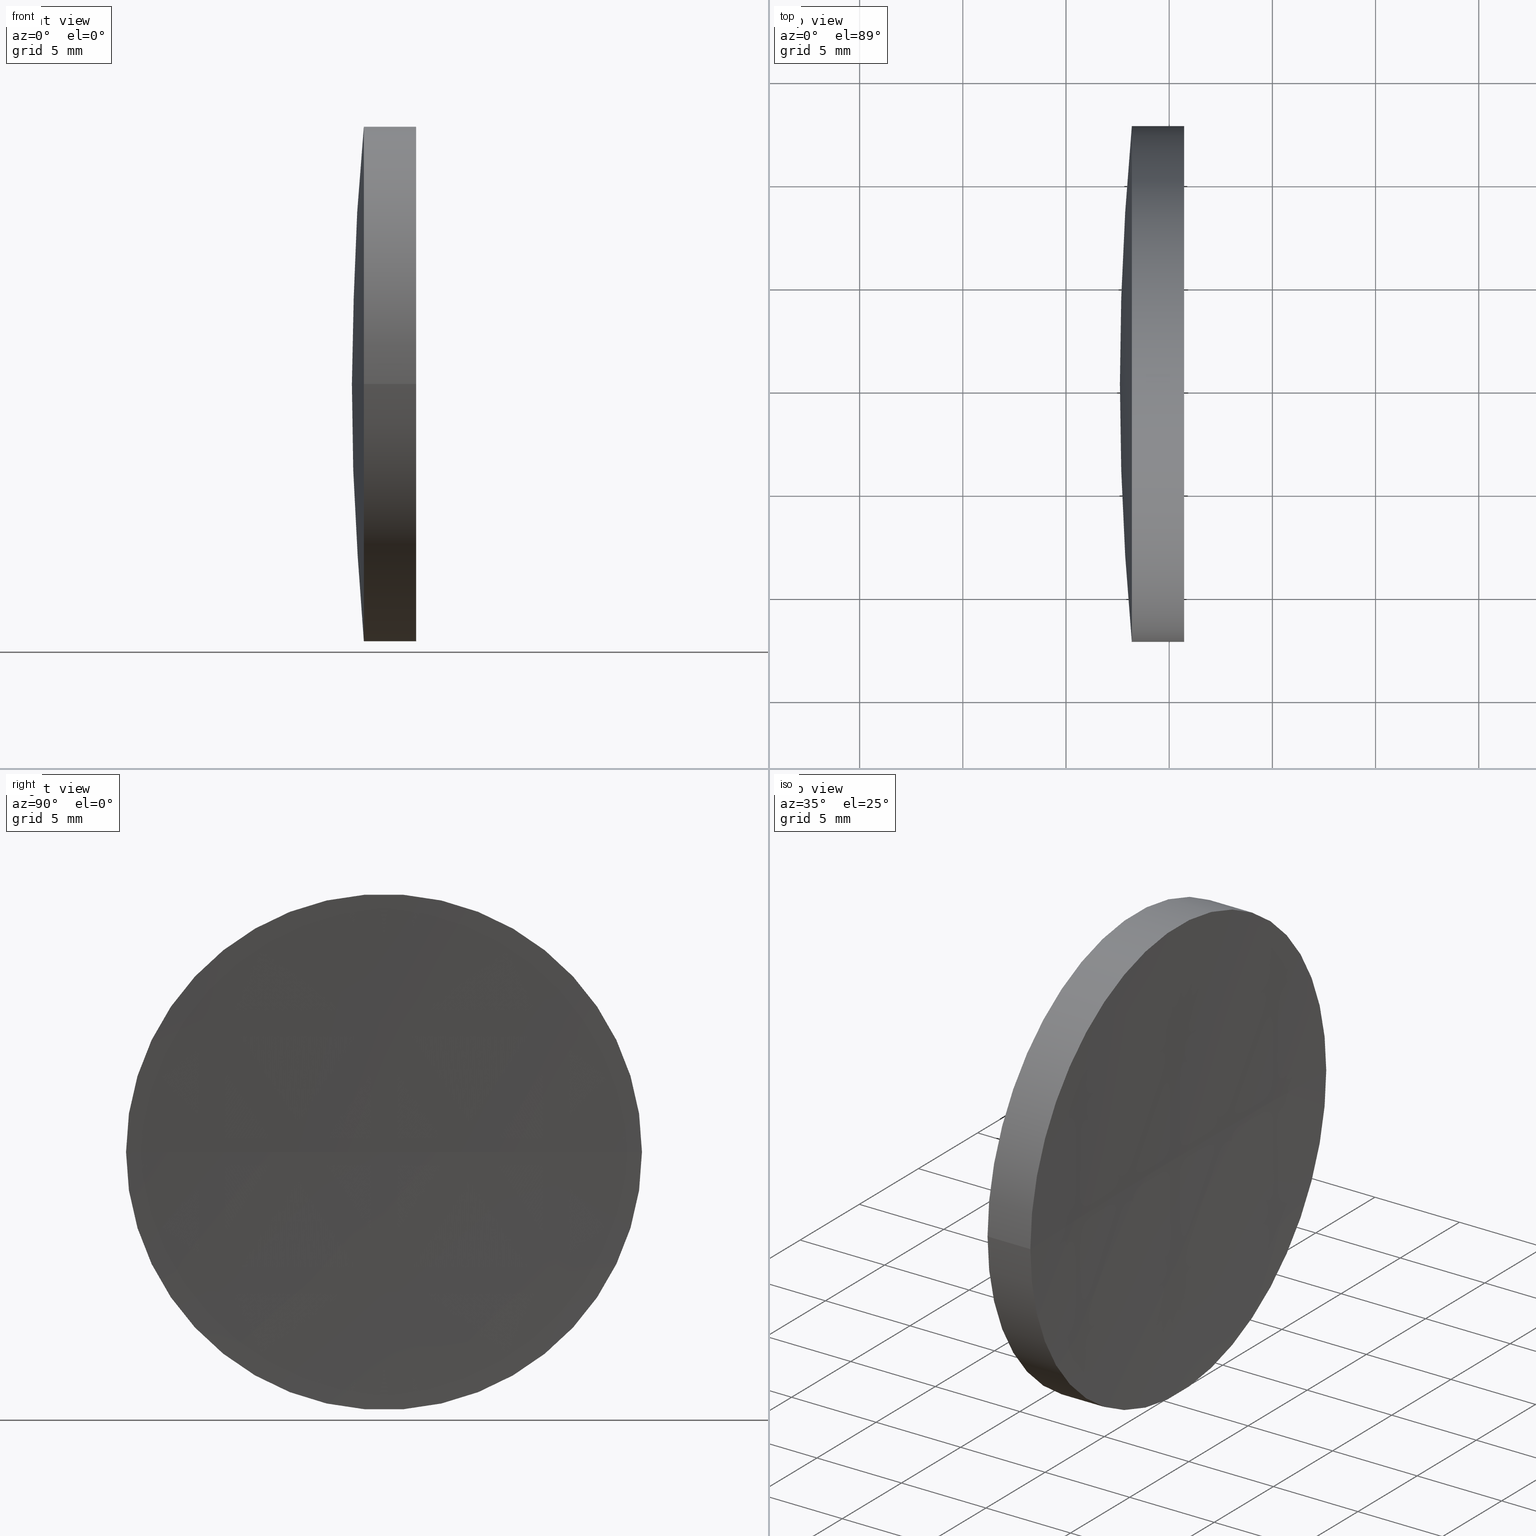
[diagram: canonical four-view strip — front | top / right | iso, engineering-drawing reading convention]
A machine part, canonical four-view strip (front | top / right | iso — engineering-drawing reading convention). The complete STEP part file that produces these views, byte-faithful:
ISO-10303-21;
HEADER;
FILE_DESCRIPTION (( 'STEP AP214' ),
    '1' );
FILE_NAME ('150010.STEP',
    '2019-07-04T06:19:51',
    ( '' ),
    ( '' ),
    'SwSTEP 2.0',
    'SolidWorks 2016',
    '' );
FILE_SCHEMA (( 'AUTOMOTIVE_DESIGN' ));
ENDSEC;

DATA;
#1 = SPHERICAL_SURFACE ( 'NONE', #110, 371.3000000000000700 ) ;
#2 = FACE_OUTER_BOUND ( 'NONE', #70, .T. ) ;
#3 = SURFACE_STYLE_FILL_AREA ( #169 ) ;
#4 = DIRECTION ( 'NONE',  ( -1.000000000000000000, -6.937607244762875000E-016, -0.0000000000000000000 ) ) ;
#5 = CARTESIAN_POINT ( 'NONE',  ( 258.0121936984948000, 65.21684047094031200, 0.0000000000000000000 ) ) ;
#6 = DIRECTION ( 'NONE',  ( 0.0000000000000000000, -1.000000000000000000, 0.0000000000000000000 ) ) ;
#7 =( NAMED_UNIT ( * ) PLANE_ANGLE_UNIT ( ) SI_UNIT ( $, .RADIAN. ) );
#8 = ADVANCED_BREP_SHAPE_REPRESENTATION ( '150010', ( #111, #23 ), #48 ) ;
#9 = ADVANCED_FACE ( 'NONE', ( #72 ), #154, .T. ) ;
#10 = SURFACE_STYLE_USAGE ( .BOTH. , #64 ) ;
#11 = FACE_OUTER_BOUND ( 'NONE', #192, .T. ) ;
#12 = VERTEX_POINT ( 'NONE', #79 ) ;
#13 = EDGE_CURVE ( 'NONE', #49, #176, #78, .T. ) ;
#14 = VECTOR ( 'NONE', #40, 1000.000000000000000 ) ;
#15 = EDGE_LOOP ( 'NONE', ( #187, #84, #112 ) ) ;
#16 = CARTESIAN_POINT ( 'NONE',  ( 115.9444912979631800, 52.71684047094035500, 0.0000000000000000000 ) ) ;
#17 = SPHERICAL_SURFACE ( 'NONE', #156, 371.3000000000000700 ) ;
#18 = CARTESIAN_POINT ( 'NONE',  ( 123.1904224595736100, 65.21684047094032600, 0.0000000000000000000 ) ) ;
#19 = CYLINDRICAL_SURFACE ( 'NONE', #132, 12.49999999999997000 ) ;
#20 = EDGE_CURVE ( 'NONE', #12, #52, #28, .T. ) ;
#21 = FILL_AREA_STYLE ('',( #122 ) ) ;
#22 = VERTEX_POINT ( 'NONE', #75 ) ;
#23 = AXIS2_PLACEMENT_3D ( 'NONE', #39, #71, #159 ) ;
#24 = EDGE_CURVE ( 'NONE', #22, #49, #145, .T. ) ;
#25 = PRESENTATION_STYLE_ASSIGNMENT (( #141 ) ) ;
#26 = ORIENTED_EDGE ( 'NONE', *, *, #113, .F. ) ;
#27 = UNCERTAINTY_MEASURE_WITH_UNIT (LENGTH_MEASURE( 1.000000000000000100E-005 ), #56, 'distance_accuracy_value', 'NONE');
#28 = CIRCLE ( 'NONE', #88, 12.49999999999990800 ) ;
#29 = AXIS2_PLACEMENT_3D ( 'NONE', #117, #34, #33 ) ;
#30 = PRODUCT_DEFINITION_SHAPE ( 'NONE', 'NONE',  #32 ) ;
#31 = FACE_OUTER_BOUND ( 'NONE', #146, .T. ) ;
#32 = PRODUCT_DEFINITION ( 'δ֪', '', #46, #191 ) ;
#33 = DIRECTION ( 'NONE',  ( 0.0000000000000000000, 1.000000000000000000, 1.224646799147353200E-016 ) ) ;
#34 = DIRECTION ( 'NONE',  ( -8.496118506040342700E-032, 1.224646799147353200E-016, -1.000000000000000000 ) ) ;
#35 = AXIS2_PLACEMENT_3D ( 'NONE', #105, #172, #82 ) ;
#36 = COLOUR_RGB ( '',1.000000000000000000, 1.000000000000000000, 1.000000000000000000 ) ;
#37 = COLOUR_RGB ( '',1.000000000000000000, 1.000000000000000000, 1.000000000000000000 ) ;
#38 = CARTESIAN_POINT ( 'NONE',  ( 115.9444912979631700, 65.21684047094032600, 0.0000000000000000000 ) ) ;
#39 = CARTESIAN_POINT ( 'NONE',  ( 0.0000000000000000000, 0.0000000000000000000, 0.0000000000000000000 ) ) ;
#40 = DIRECTION ( 'NONE',  ( -1.000000000000000000, -6.937607244762875000E-016, -0.0000000000000000000 ) ) ;
#41 = EDGE_LOOP ( 'NONE', ( #74, #59, #44 ) ) ;
#42 = CARTESIAN_POINT ( 'NONE',  ( 125.5121936984948100, 65.21684047094019800, 0.0000000000000000000 ) ) ;
#43 = DIRECTION ( 'NONE',  ( 1.000000000000000000, 0.0000000000000000000, 0.0000000000000000000 ) ) ;
#44 = ORIENTED_EDGE ( 'NONE', *, *, #114, .T. ) ;
#45 = ORIENTED_EDGE ( 'NONE', *, *, #167, .T. ) ;
#46 = PRODUCT_DEFINITION_FORMATION_WITH_SPECIFIED_SOURCE ( '�κ�', '', #164, .NOT_KNOWN. ) ;
#47 = CIRCLE ( 'NONE', #143, 135.4000000000000300 ) ;
#48 =( GEOMETRIC_REPRESENTATION_CONTEXT ( 3 ) GLOBAL_UNCERTAINTY_ASSIGNED_CONTEXT ( ( #128 ) ) GLOBAL_UNIT_ASSIGNED_CONTEXT ( ( #95, #66, #80 ) ) REPRESENTATION_CONTEXT ( 'NONE', 'WORKASPACE' ) );
#49 = VERTEX_POINT ( 'NONE', #61 ) ;
#50 = EDGE_CURVE ( 'NONE', #12, #49, #183, .T. ) ;
#51 = CARTESIAN_POINT ( 'NONE',  ( 115.9444912979631500, 77.71684047094029800, 1.530808498934187800E-015 ) ) ;
#52 = VERTEX_POINT ( 'NONE', #76 ) ;
#53 =( LENGTH_UNIT ( ) NAMED_UNIT ( * ) SI_UNIT ( .MILLI., .METRE. ) );
#54 = DIRECTION ( 'NONE',  ( 0.0000000000000000000, -0.0000000000000000000, 1.000000000000000000 ) ) ;
#55 = CARTESIAN_POINT ( 'NONE',  ( 123.1904224595736100, 65.21684047094032600, 0.0000000000000000000 ) ) ;
#56 =( LENGTH_UNIT ( ) NAMED_UNIT ( * ) SI_UNIT ( .MILLI., .METRE. ) );
#57 = ORIENTED_EDGE ( 'NONE', *, *, #50, .F. ) ;
#58 = AXIS2_PLACEMENT_3D ( 'NONE', #18, #101, #148 ) ;
#59 = ORIENTED_EDGE ( 'NONE', *, *, #131, .T. ) ;
#60 = PRESENTATION_STYLE_ASSIGNMENT (( #10 ) ) ;
#61 = CARTESIAN_POINT ( 'NONE',  ( 123.1904224595736300, 52.71684047094031200, 0.0000000000000000000 ) ) ;
#62 = UNCERTAINTY_MEASURE_WITH_UNIT (LENGTH_MEASURE( 1.000000000000000100E-005 ), #53, 'distance_accuracy_value', 'NONE');
#63 = LINE ( 'NONE', #51, #14 ) ;
#64 = SURFACE_SIDE_STYLE ('',( #3 ) ) ;
#65 = ADVANCED_FACE ( 'NONE', ( #31 ), #1, .F. ) ;
#66 =( NAMED_UNIT ( * ) PLANE_ANGLE_UNIT ( ) SI_UNIT ( $, .RADIAN. ) );
#67 =( GEOMETRIC_REPRESENTATION_CONTEXT ( 3 ) GLOBAL_UNCERTAINTY_ASSIGNED_CONTEXT ( ( #62 ) ) GLOBAL_UNIT_ASSIGNED_CONTEXT ( ( #53, #7, #104 ) ) REPRESENTATION_CONTEXT ( 'NONE', 'WORKASPACE' ) );
#68 = DIRECTION ( 'NONE',  ( 0.0000000000000000000, 0.0000000000000000000, -1.000000000000000000 ) ) ;
#69 =( NAMED_UNIT ( * ) PLANE_ANGLE_UNIT ( ) SI_UNIT ( $, .RADIAN. ) );
#70 = EDGE_LOOP ( 'NONE', ( #109, #73, #171, #57 ) ) ;
#71 = DIRECTION ( 'NONE',  ( 0.0000000000000000000, 0.0000000000000000000, 1.000000000000000000 ) ) ;
#72 = FACE_OUTER_BOUND ( 'NONE', #15, .T. ) ;
#73 = ORIENTED_EDGE ( 'NONE', *, *, #113, .T. ) ;
#74 = ORIENTED_EDGE ( 'NONE', *, *, #13, .F. ) ;
#75 = CARTESIAN_POINT ( 'NONE',  ( 123.1904224595736000, 77.71684047094035500, 1.530808498934193900E-015 ) ) ;
#76 = CARTESIAN_POINT ( 'NONE',  ( 125.7226627224782000, 77.71684047094014100, 0.0000000000000000000 ) ) ;
#77 = CYLINDRICAL_SURFACE ( 'NONE', #165, 12.49999999999997000 ) ;
#78 = CIRCLE ( 'NONE', #29, 135.4000000000000300 ) ;
#79 = CARTESIAN_POINT ( 'NONE',  ( 125.7226627224782000, 52.71684047094036900, -1.530808498934169000E-015 ) ) ;
#80 =( NAMED_UNIT ( * ) SI_UNIT ( $, .STERADIAN. ) SOLID_ANGLE_UNIT ( ) );
#81 = EDGE_LOOP ( 'NONE', ( #26, #181, #99, #116 ) ) ;
#82 = DIRECTION ( 'NONE',  ( -8.199579206980475300E-016, 1.000000000000000000, 0.0000000000000000000 ) ) ;
#83 = DIRECTION ( 'NONE',  ( 1.000000000000000000, 0.0000000000000000000, 0.0000000000000000000 ) ) ;
#84 = ORIENTED_EDGE ( 'NONE', *, *, #13, .T. ) ;
#85 = PRESENTATION_LAYER_ASSIGNMENT (  '', '', ( #97 ) ) ;
#86 = SHAPE_DEFINITION_REPRESENTATION ( #30, #8 ) ;
#87 = DIRECTION ( 'NONE',  ( -0.0000000000000000000, 0.0000000000000000000, -1.000000000000000000 ) ) ;
#88 = AXIS2_PLACEMENT_3D ( 'NONE', #147, #4, #6 ) ;
#89 = DIRECTION ( 'NONE',  ( -1.000000000000000000, -6.937607244762875000E-016, -0.0000000000000000000 ) ) ;
#90 = CARTESIAN_POINT ( 'NONE',  ( 115.9444912979631700, 65.21684047094032600, 0.0000000000000000000 ) ) ;
#91 = CIRCLE ( 'NONE', #162, 12.49999999999990800 ) ;
#92 = ORIENTED_EDGE ( 'NONE', *, *, #167, .F. ) ;
#93 = MECHANICAL_DESIGN_GEOMETRIC_PRESENTATION_REPRESENTATION (  '', ( #97 ), #152 ) ;
#94 = DIRECTION ( 'NONE',  ( -8.496118506040342700E-032, 1.224646799147353200E-016, -1.000000000000000000 ) ) ;
#95 =( LENGTH_UNIT ( ) NAMED_UNIT ( * ) SI_UNIT ( .MILLI., .METRE. ) );
#96 = CLOSED_SHELL ( 'NONE', ( #9, #133, #65, #121, #125, #139 ) ) ;
#97 = STYLED_ITEM ( 'NONE', ( #25 ), #8 ) ;
#98 = DIRECTION ( 'NONE',  ( -8.199579206980475300E-016, 1.000000000000000000, 0.0000000000000000000 ) ) ;
#99 = ORIENTED_EDGE ( 'NONE', *, *, #50, .T. ) ;
#100 = CARTESIAN_POINT ( 'NONE',  ( 496.8121936984948700, 65.21684047094044000, 0.0000000000000000000 ) ) ;
#101 = DIRECTION ( 'NONE',  ( -1.000000000000000000, -6.937607244762875000E-016, -0.0000000000000000000 ) ) ;
#102 = DIRECTION ( 'NONE',  ( -7.475242557400729000E-016, 1.000000000000000000, 0.0000000000000000000 ) ) ;
#103 = DIRECTION ( 'NONE',  ( 1.110223024625155000E-015, -1.000000000000000000, 0.0000000000000000000 ) ) ;
#104 =( NAMED_UNIT ( * ) SI_UNIT ( $, .STERADIAN. ) SOLID_ANGLE_UNIT ( ) );
#105 = CARTESIAN_POINT ( 'NONE',  ( 258.0121936984948000, 65.21684047094031200, 0.0000000000000000000 ) ) ;
#106 = ORIENTED_EDGE ( 'NONE', *, *, #188, .T. ) ;
#107 = APPLICATION_PROTOCOL_DEFINITION ( 'draft international standard', 'automotive_design', 1998, #142 ) ;
#108 = PRODUCT_CONTEXT ( 'NONE', #127, 'mechanical' ) ;
#109 = ORIENTED_EDGE ( 'NONE', *, *, #20, .T. ) ;
#110 = AXIS2_PLACEMENT_3D ( 'NONE', #100, #168, #102 ) ;
#111 = MANIFOLD_SOLID_BREP ( '��ת1', #96 ) ;
#112 = ORIENTED_EDGE ( 'NONE', *, *, #114, .F. ) ;
#113 = EDGE_CURVE ( 'NONE', #52, #22, #63, .T. ) ;
#114 = EDGE_CURVE ( 'NONE', #22, #176, #47, .T. ) ;
#115 = FACE_OUTER_BOUND ( 'NONE', #81, .T. ) ;
#116 = ORIENTED_EDGE ( 'NONE', *, *, #24, .F. ) ;
#117 = CARTESIAN_POINT ( 'NONE',  ( 258.0121936984948000, 65.21684047094031200, 0.0000000000000000000 ) ) ;
#118 = PRODUCT_RELATED_PRODUCT_CATEGORY ( 'part', '', ( #164 ) ) ;
#119 = AXIS2_PLACEMENT_3D ( 'NONE', #155, #94, #124 ) ;
#120 = DIRECTION ( 'NONE',  ( -1.000000000000000000, -6.937607244762875000E-016, -0.0000000000000000000 ) ) ;
#121 = ADVANCED_FACE ( 'NONE', ( #11 ), #17, .F. ) ;
#122 = FILL_AREA_STYLE_COLOUR ( '', #36 ) ;
#123 = ORIENTED_EDGE ( 'NONE', *, *, #149, .F. ) ;
#124 = DIRECTION ( 'NONE',  ( 0.0000000000000000000, 1.000000000000000000, 1.224646799147353200E-016 ) ) ;
#125 = ADVANCED_FACE ( 'NONE', ( #115 ), #77, .T. ) ;
#126 = CARTESIAN_POINT ( 'NONE',  ( 496.8121936984948700, 65.21684047094044000, 0.0000000000000000000 ) ) ;
#127 = APPLICATION_CONTEXT ( 'automotive_design' ) ;
#128 = UNCERTAINTY_MEASURE_WITH_UNIT (LENGTH_MEASURE( 1.000000000000000100E-005 ), #95, 'distance_accuracy_value', 'NONE');
#129 = FACE_OUTER_BOUND ( 'NONE', #41, .T. ) ;
#130 =( NAMED_UNIT ( * ) SI_UNIT ( $, .STERADIAN. ) SOLID_ANGLE_UNIT ( ) );
#131 = EDGE_CURVE ( 'NONE', #49, #22, #144, .T. ) ;
#132 = AXIS2_PLACEMENT_3D ( 'NONE', #38, #89, #151 ) ;
#133 = ADVANCED_FACE ( 'NONE', ( #2 ), #19, .T. ) ;
#134 = FILL_AREA_STYLE_COLOUR ( '', #37 ) ;
#135 = DIRECTION ( 'NONE',  ( -1.000000000000000000, -6.937607244762875000E-016, -0.0000000000000000000 ) ) ;
#136 = VECTOR ( 'NONE', #180, 1000.000000000000000 ) ;
#137 = DIRECTION ( 'NONE',  ( -0.0000000000000000000, 0.0000000000000000000, 1.000000000000000000 ) ) ;
#138 = CARTESIAN_POINT ( 'NONE',  ( 258.0121936984948000, 65.21684047094031200, 0.0000000000000000000 ) ) ;
#139 = ADVANCED_FACE ( 'NONE', ( #129 ), #166, .T. ) ;
#140 = ORIENTED_EDGE ( 'NONE', *, *, #188, .F. ) ;
#141 = SURFACE_STYLE_USAGE ( .BOTH. , #174 ) ;
#142 = APPLICATION_CONTEXT ( 'automotive_design' ) ;
#143 = AXIS2_PLACEMENT_3D ( 'NONE', #138, #137, #43 ) ;
#144 = CIRCLE ( 'NONE', #177, 12.50000000000001800 ) ;
#145 = CIRCLE ( 'NONE', #58, 12.50000000000001800 ) ;
#146 = EDGE_LOOP ( 'NONE', ( #161, #106, #92 ) ) ;
#147 = CARTESIAN_POINT ( 'NONE',  ( 125.7226627224781800, 65.21684047094032600, 0.0000000000000000000 ) ) ;
#148 = DIRECTION ( 'NONE',  ( 1.110223024625155000E-015, -1.000000000000000000, 0.0000000000000000000 ) ) ;
#149 = EDGE_CURVE ( 'NONE', #52, #12, #91, .T. ) ;
#150 = DIRECTION ( 'NONE',  ( 0.0000000000000000000, -1.000000000000000000, 0.0000000000000000000 ) ) ;
#151 = DIRECTION ( 'NONE',  ( 1.110223024625159300E-015, -1.000000000000000000, 0.0000000000000000000 ) ) ;
#152 =( GEOMETRIC_REPRESENTATION_CONTEXT ( 3 ) GLOBAL_UNCERTAINTY_ASSIGNED_CONTEXT ( ( #27 ) ) GLOBAL_UNIT_ASSIGNED_CONTEXT ( ( #56, #69, #130 ) ) REPRESENTATION_CONTEXT ( 'NONE', 'WORKASPACE' ) );
#153 = DIRECTION ( 'NONE',  ( 1.110223024625159300E-015, -1.000000000000000000, 0.0000000000000000000 ) ) ;
#154 = SPHERICAL_SURFACE ( 'NONE', #179, 135.4000000000000300 ) ;
#155 = CARTESIAN_POINT ( 'NONE',  ( 496.8121936984948700, 65.21684047094044000, 0.0000000000000000000 ) ) ;
#156 = AXIS2_PLACEMENT_3D ( 'NONE', #126, #68, #173 ) ;
#157 = APPLICATION_PROTOCOL_DEFINITION ( 'draft international standard', 'automotive_design', 1998, #127 ) ;
#158 = CIRCLE ( 'NONE', #189, 371.3000000000001300 ) ;
#159 = DIRECTION ( 'NONE',  ( 1.000000000000000000, 0.0000000000000000000, 0.0000000000000000000 ) ) ;
#160 = PRESENTATION_LAYER_ASSIGNMENT (  '', '', ( #178 ) ) ;
#161 = ORIENTED_EDGE ( 'NONE', *, *, #20, .F. ) ;
#162 = AXIS2_PLACEMENT_3D ( 'NONE', #186, #135, #150 ) ;
#163 = VERTEX_POINT ( 'NONE', #42 ) ;
#164 = PRODUCT ( '150010', '150010', '', ( #108 ) ) ;
#165 = AXIS2_PLACEMENT_3D ( 'NONE', #90, #120, #153 ) ;
#166 = SPHERICAL_SURFACE ( 'NONE', #35, 135.4000000000000300 ) ;
#167 = EDGE_CURVE ( 'NONE', #52, #163, #158, .T. ) ;
#168 = DIRECTION ( 'NONE',  ( 0.0000000000000000000, 0.0000000000000000000, -1.000000000000000000 ) ) ;
#169 = FILL_AREA_STYLE ('',( #134 ) ) ;
#170 = CARTESIAN_POINT ( 'NONE',  ( 496.8121936984948700, 65.21684047094044000, 0.0000000000000000000 ) ) ;
#171 = ORIENTED_EDGE ( 'NONE', *, *, #131, .F. ) ;
#172 = DIRECTION ( 'NONE',  ( -0.0000000000000000000, 0.0000000000000000000, -1.000000000000000000 ) ) ;
#173 = DIRECTION ( 'NONE',  ( -7.475242557400729000E-016, 1.000000000000000000, 0.0000000000000000000 ) ) ;
#174 = SURFACE_SIDE_STYLE ('',( #182 ) ) ;
#175 = CIRCLE ( 'NONE', #119, 371.3000000000000700 ) ;
#176 = VERTEX_POINT ( 'NONE', #185 ) ;
#177 = AXIS2_PLACEMENT_3D ( 'NONE', #55, #184, #103 ) ;
#178 = STYLED_ITEM ( 'NONE', ( #60 ), #111 ) ;
#179 = AXIS2_PLACEMENT_3D ( 'NONE', #5, #87, #98 ) ;
#180 = DIRECTION ( 'NONE',  ( -1.000000000000000000, -6.937607244762875000E-016, -0.0000000000000000000 ) ) ;
#181 = ORIENTED_EDGE ( 'NONE', *, *, #149, .T. ) ;
#182 = SURFACE_STYLE_FILL_AREA ( #21 ) ;
#183 = LINE ( 'NONE', #16, #136 ) ;
#184 = DIRECTION ( 'NONE',  ( -1.000000000000000000, -6.937607244762875000E-016, -0.0000000000000000000 ) ) ;
#185 = CARTESIAN_POINT ( 'NONE',  ( 122.6121936984947900, 65.21684047094022700, 0.0000000000000000000 ) ) ;
#186 = CARTESIAN_POINT ( 'NONE',  ( 125.7226627224781800, 65.21684047094032600, 0.0000000000000000000 ) ) ;
#187 = ORIENTED_EDGE ( 'NONE', *, *, #24, .T. ) ;
#188 = EDGE_CURVE ( 'NONE', #12, #163, #175, .T. ) ;
#189 = AXIS2_PLACEMENT_3D ( 'NONE', #170, #54, #83 ) ;
#190 = MECHANICAL_DESIGN_GEOMETRIC_PRESENTATION_REPRESENTATION (  '', ( #178 ), #67 ) ;
#191 = PRODUCT_DEFINITION_CONTEXT ( 'detailed design', #142, 'design' ) ;
#192 = EDGE_LOOP ( 'NONE', ( #140, #123, #45 ) ) ;
ENDSEC;
END-ISO-10303-21;
